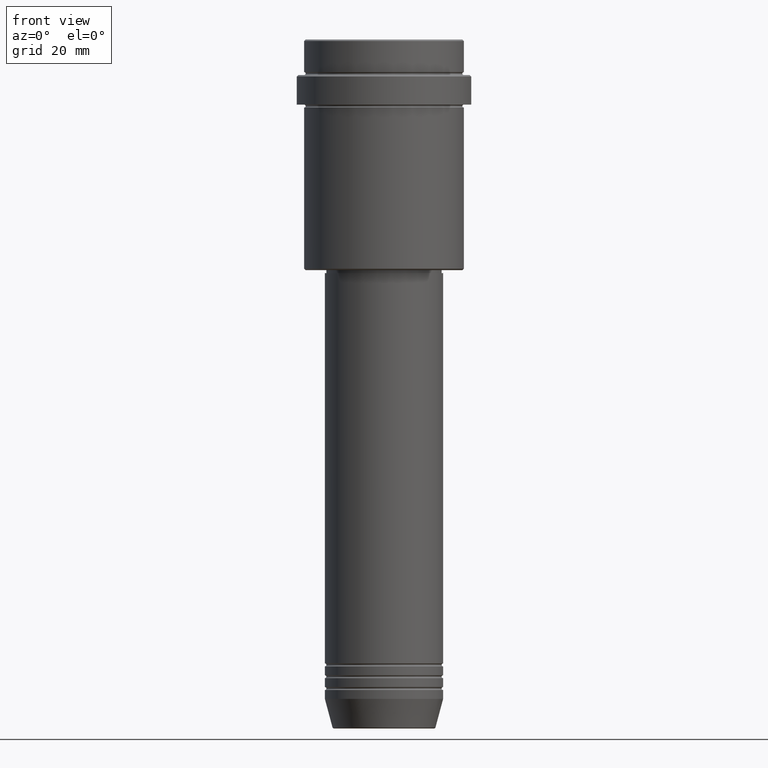
[diagram: clean part render]
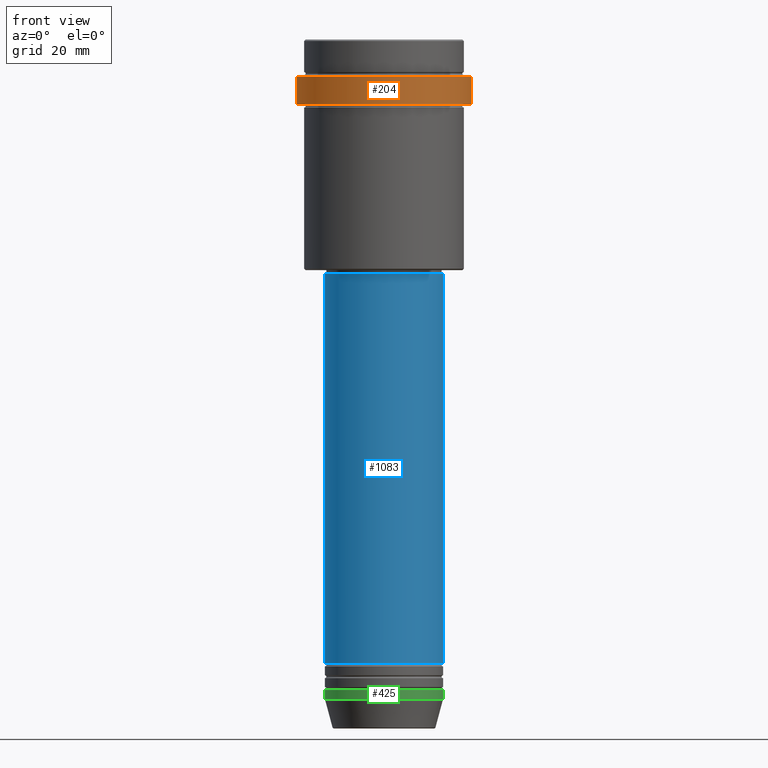
[diagram: same view with three faces highlighted in distinct colors, each labeled with its STEP entity id]
A machine part, front view with three faces highlighted in distinct colors.
Their STEP definitions:

[orange] entity #204 — the highlighted cylindrical surface (partial cylindrical patch) has radius 29.5 mm, axis along (-0, -0, 1).
#51 = EDGE_LOOP ( 'NONE', ( #88, #515, #595, #1386 ) ) ;
#88 = ORIENTED_EDGE ( 'NONE', *, *, #114, .F. ) ;
#114 = EDGE_CURVE ( 'NONE', #450, #142, #512, .T. ) ;
#142 = VERTEX_POINT ( 'NONE', #704 ) ;
#173 = DIRECTION ( 'NONE',  ( 1.000000000000000000, 0.000000000000000000, 0.000000000000000000 ) ) ;
#186 = FACE_OUTER_BOUND ( 'NONE', #51, .T. ) ;
#190 = DIRECTION ( 'NONE',  ( -0.000000000000000000, -0.000000000000000000, 1.000000000000000000 ) ) ;
#204 = ADVANCED_FACE ( 'NONE', ( #186 ), #1051, .T. ) ;
#208 = AXIS2_PLACEMENT_3D ( 'NONE', #1071, #612, #393 ) ;
#297 = CARTESIAN_POINT ( 'NONE',  ( 29.50000000000000000, 0.000000000000000000, 0.000000000000000000 ) ) ;
#326 = VERTEX_POINT ( 'NONE', #547 ) ;
#330 = VECTOR ( 'NONE', #190, 1000.000000000000000 ) ;
#393 = DIRECTION ( 'NONE',  ( 1.000000000000000000, 0.000000000000000000, 0.000000000000000000 ) ) ;
#404 = DIRECTION ( 'NONE',  ( -0.000000000000000000, -0.000000000000000000, 1.000000000000000000 ) ) ;
#450 = VERTEX_POINT ( 'NONE', #472 ) ;
#458 = AXIS2_PLACEMENT_3D ( 'NONE', #490, #1174, #173 ) ;
#472 = CARTESIAN_POINT ( 'NONE',  ( -29.49999999999999645, 3.612708057484690815E-15, -22.00000000000000711 ) ) ;
#490 = CARTESIAN_POINT ( 'NONE',  ( 0.000000000000000000, 0.000000000000000000, -12.49999999999994849 ) ) ;
#512 = LINE ( 'NONE', #1387, #1029 ) ;
#515 = ORIENTED_EDGE ( 'NONE', *, *, #787, .T. ) ;
#547 = CARTESIAN_POINT ( 'NONE',  ( 29.49999999999999645, 0.000000000000000000, -22.00000000000000711 ) ) ;
#595 = ORIENTED_EDGE ( 'NONE', *, *, #1288, .T. ) ;
#612 = DIRECTION ( 'NONE',  ( -0.000000000000000000, -0.000000000000000000, 1.000000000000000000 ) ) ;
#621 = AXIS2_PLACEMENT_3D ( 'NONE', #861, #751, #853 ) ;
#626 = EDGE_CURVE ( 'NONE', #946, #142, #1312, .T. ) ;
#692 = CIRCLE ( 'NONE', #621, 29.49999999999999645 ) ;
#704 = CARTESIAN_POINT ( 'NONE',  ( -29.50000000000000000, 3.612708057484691604E-15, -12.49999999999994849 ) ) ;
#751 = DIRECTION ( 'NONE',  ( -0.000000000000000000, -0.000000000000000000, 1.000000000000000000 ) ) ;
#787 = EDGE_CURVE ( 'NONE', #450, #326, #692, .T. ) ;
#853 = DIRECTION ( 'NONE',  ( 1.000000000000000000, 0.000000000000000000, 0.000000000000000000 ) ) ;
#861 = CARTESIAN_POINT ( 'NONE',  ( 0.000000000000000000, 0.000000000000000000, -22.00000000000000711 ) ) ;
#946 = VERTEX_POINT ( 'NONE', #1341 ) ;
#1029 = VECTOR ( 'NONE', #404, 1000.000000000000000 ) ;
#1051 = CYLINDRICAL_SURFACE ( 'NONE', #208, 29.50000000000000000 ) ;
#1071 = CARTESIAN_POINT ( 'NONE',  ( 0.000000000000000000, 0.000000000000000000, 0.000000000000000000 ) ) ;
#1174 = DIRECTION ( 'NONE',  ( 0.000000000000000000, 0.000000000000000000, -1.000000000000000000 ) ) ;
#1197 = LINE ( 'NONE', #297, #330 ) ;
#1288 = EDGE_CURVE ( 'NONE', #326, #946, #1197, .T. ) ;
#1312 = CIRCLE ( 'NONE', #458, 29.50000000000000000 ) ;
#1341 = CARTESIAN_POINT ( 'NONE',  ( 29.50000000000000000, 0.000000000000000000, -12.49999999999994849 ) ) ;
#1386 = ORIENTED_EDGE ( 'NONE', *, *, #626, .T. ) ;
#1387 = CARTESIAN_POINT ( 'NONE',  ( -29.50000000000000000, 3.612708057484691604E-15, 0.000000000000000000 ) ) ;

[blue] entity #1083 — the highlighted cylindrical surface (partial cylindrical patch) has radius 20 mm, axis along (-0, -0, 1).
#40 = DIRECTION ( 'NONE',  ( 1.000000000000000000, 0.000000000000000000, 0.000000000000000000 ) ) ;
#46 = AXIS2_PLACEMENT_3D ( 'NONE', #928, #609, #502 ) ;
#112 = CARTESIAN_POINT ( 'NONE',  ( -20.00000000000000000, 2.449293598294706513E-15, -210.9999999999999432 ) ) ;
#147 = ORIENTED_EDGE ( 'NONE', *, *, #1036, .T. ) ;
#221 = DIRECTION ( 'NONE',  ( 1.000000000000000000, 0.000000000000000000, 0.000000000000000000 ) ) ;
#373 = CYLINDRICAL_SURFACE ( 'NONE', #46, 20.00000000000000000 ) ;
#399 = EDGE_CURVE ( 'NONE', #1064, #601, #1156, .T. ) ;
#493 = CARTESIAN_POINT ( 'NONE',  ( 0.000000000000000000, 0.000000000000000000, -210.9999999999999432 ) ) ;
#502 = DIRECTION ( 'NONE',  ( 1.000000000000000000, 0.000000000000000000, 0.000000000000000000 ) ) ;
#521 = CARTESIAN_POINT ( 'NONE',  ( 0.000000000000000000, 0.000000000000000000, -79.00000000000001421 ) ) ;
#530 = AXIS2_PLACEMENT_3D ( 'NONE', #521, #962, #221 ) ;
#535 = LINE ( 'NONE', #1311, #1331 ) ;
#601 = VERTEX_POINT ( 'NONE', #1152 ) ;
#609 = DIRECTION ( 'NONE',  ( -0.000000000000000000, -0.000000000000000000, 1.000000000000000000 ) ) ;
#709 = EDGE_CURVE ( 'NONE', #862, #601, #535, .T. ) ;
#833 = EDGE_LOOP ( 'NONE', ( #953, #147, #1147, #1025 ) ) ;
#850 = AXIS2_PLACEMENT_3D ( 'NONE', #493, #918, #40 ) ;
#862 = VERTEX_POINT ( 'NONE', #1105 ) ;
#910 = CARTESIAN_POINT ( 'NONE',  ( -20.00000000000000000, 2.449293598294706513E-15, -79.00000000000001421 ) ) ;
#918 = DIRECTION ( 'NONE',  ( -0.000000000000000000, -0.000000000000000000, 1.000000000000000000 ) ) ;
#928 = CARTESIAN_POINT ( 'NONE',  ( 0.000000000000000000, 0.000000000000000000, 0.000000000000000000 ) ) ;
#953 = ORIENTED_EDGE ( 'NONE', *, *, #974, .F. ) ;
#962 = DIRECTION ( 'NONE',  ( -0.000000000000000000, -0.000000000000000000, 1.000000000000000000 ) ) ;
#974 = EDGE_CURVE ( 'NONE', #1345, #1064, #1247, .T. ) ;
#1025 = ORIENTED_EDGE ( 'NONE', *, *, #399, .F. ) ;
#1036 = EDGE_CURVE ( 'NONE', #1345, #862, #1350, .T. ) ;
#1056 = CARTESIAN_POINT ( 'NONE',  ( -20.00000000000000000, 2.449293598294706513E-15, 0.000000000000000000 ) ) ;
#1064 = VERTEX_POINT ( 'NONE', #910 ) ;
#1083 = ADVANCED_FACE ( 'NONE', ( #1353 ), #373, .T. ) ;
#1105 = CARTESIAN_POINT ( 'NONE',  ( 20.00000000000000000, 0.000000000000000000, -210.9999999999999432 ) ) ;
#1110 = VECTOR ( 'NONE', #1378, 1000.000000000000000 ) ;
#1147 = ORIENTED_EDGE ( 'NONE', *, *, #709, .T. ) ;
#1152 = CARTESIAN_POINT ( 'NONE',  ( 20.00000000000000000, 0.000000000000000000, -79.00000000000001421 ) ) ;
#1156 = CIRCLE ( 'NONE', #530, 20.00000000000000000 ) ;
#1182 = DIRECTION ( 'NONE',  ( -0.000000000000000000, -0.000000000000000000, 1.000000000000000000 ) ) ;
#1247 = LINE ( 'NONE', #1056, #1110 ) ;
#1311 = CARTESIAN_POINT ( 'NONE',  ( 20.00000000000000000, 0.000000000000000000, 0.000000000000000000 ) ) ;
#1331 = VECTOR ( 'NONE', #1182, 1000.000000000000000 ) ;
#1345 = VERTEX_POINT ( 'NONE', #112 ) ;
#1350 = CIRCLE ( 'NONE', #850, 20.00000000000000000 ) ;
#1353 = FACE_OUTER_BOUND ( 'NONE', #833, .T. ) ;
#1378 = DIRECTION ( 'NONE',  ( -0.000000000000000000, -0.000000000000000000, 1.000000000000000000 ) ) ;

[green] entity #425 — the highlighted cylindrical surface (partial cylindrical patch) has radius 20 mm, axis along (-0, -0, 1).
#32 = DIRECTION ( 'NONE',  ( -0.000000000000000000, -0.000000000000000000, 1.000000000000000000 ) ) ;
#103 = VERTEX_POINT ( 'NONE', #1146 ) ;
#145 = CARTESIAN_POINT ( 'NONE',  ( 0.000000000000000000, 0.000000000000000000, 0.000000000000000000 ) ) ;
#192 = AXIS2_PLACEMENT_3D ( 'NONE', #679, #449, #242 ) ;
#194 = CARTESIAN_POINT ( 'NONE',  ( 20.00000000000000000, 0.000000000000000000, -223.0000000000000284 ) ) ;
#242 = DIRECTION ( 'NONE',  ( 1.000000000000000000, 0.000000000000000000, 0.000000000000000000 ) ) ;
#277 = ORIENTED_EDGE ( 'NONE', *, *, #491, .T. ) ;
#318 = CARTESIAN_POINT ( 'NONE',  ( 20.00000000000000000, 0.000000000000000000, -220.0000000000000284 ) ) ;
#329 = VERTEX_POINT ( 'NONE', #318 ) ;
#339 = CARTESIAN_POINT ( 'NONE',  ( 20.00000000000000000, 0.000000000000000000, 0.000000000000000000 ) ) ;
#384 = EDGE_CURVE ( 'NONE', #103, #713, #756, .T. ) ;
#425 = ADVANCED_FACE ( 'NONE', ( #683 ), #1001, .T. ) ;
#449 = DIRECTION ( 'NONE',  ( -0.000000000000000000, -0.000000000000000000, 1.000000000000000000 ) ) ;
#491 = EDGE_CURVE ( 'NONE', #713, #329, #674, .T. ) ;
#505 = AXIS2_PLACEMENT_3D ( 'NONE', #881, #1185, #871 ) ;
#562 = DIRECTION ( 'NONE',  ( -0.000000000000000000, -0.000000000000000000, 1.000000000000000000 ) ) ;
#579 = EDGE_LOOP ( 'NONE', ( #1049, #1076, #277, #1160 ) ) ;
#592 = VECTOR ( 'NONE', #32, 1000.000000000000000 ) ;
#660 = LINE ( 'NONE', #1228, #973 ) ;
#674 = LINE ( 'NONE', #339, #592 ) ;
#676 = VERTEX_POINT ( 'NONE', #819 ) ;
#679 = CARTESIAN_POINT ( 'NONE',  ( 0.000000000000000000, 0.000000000000000000, -220.0000000000000284 ) ) ;
#683 = FACE_OUTER_BOUND ( 'NONE', #579, .T. ) ;
#713 = VERTEX_POINT ( 'NONE', #194 ) ;
#732 = AXIS2_PLACEMENT_3D ( 'NONE', #145, #562, #1108 ) ;
#756 = CIRCLE ( 'NONE', #505, 20.00000000000000000 ) ;
#819 = CARTESIAN_POINT ( 'NONE',  ( -20.00000000000000000, 2.449293598294706513E-15, -220.0000000000000284 ) ) ;
#871 = DIRECTION ( 'NONE',  ( 1.000000000000000000, 0.000000000000000000, 0.000000000000000000 ) ) ;
#881 = CARTESIAN_POINT ( 'NONE',  ( 0.000000000000000000, 0.000000000000000000, -223.0000000000000284 ) ) ;
#973 = VECTOR ( 'NONE', #1103, 1000.000000000000000 ) ;
#1001 = CYLINDRICAL_SURFACE ( 'NONE', #732, 20.00000000000000000 ) ;
#1049 = ORIENTED_EDGE ( 'NONE', *, *, #1327, .F. ) ;
#1076 = ORIENTED_EDGE ( 'NONE', *, *, #384, .T. ) ;
#1103 = DIRECTION ( 'NONE',  ( -0.000000000000000000, -0.000000000000000000, 1.000000000000000000 ) ) ;
#1108 = DIRECTION ( 'NONE',  ( 1.000000000000000000, 0.000000000000000000, 0.000000000000000000 ) ) ;
#1146 = CARTESIAN_POINT ( 'NONE',  ( -20.00000000000000000, 2.449293598294706513E-15, -223.0000000000000284 ) ) ;
#1160 = ORIENTED_EDGE ( 'NONE', *, *, #1390, .F. ) ;
#1185 = DIRECTION ( 'NONE',  ( -0.000000000000000000, -0.000000000000000000, 1.000000000000000000 ) ) ;
#1228 = CARTESIAN_POINT ( 'NONE',  ( -20.00000000000000000, 2.449293598294706513E-15, 0.000000000000000000 ) ) ;
#1327 = EDGE_CURVE ( 'NONE', #103, #676, #660, .T. ) ;
#1382 = CIRCLE ( 'NONE', #192, 20.00000000000000000 ) ;
#1390 = EDGE_CURVE ( 'NONE', #676, #329, #1382, .T. ) ;